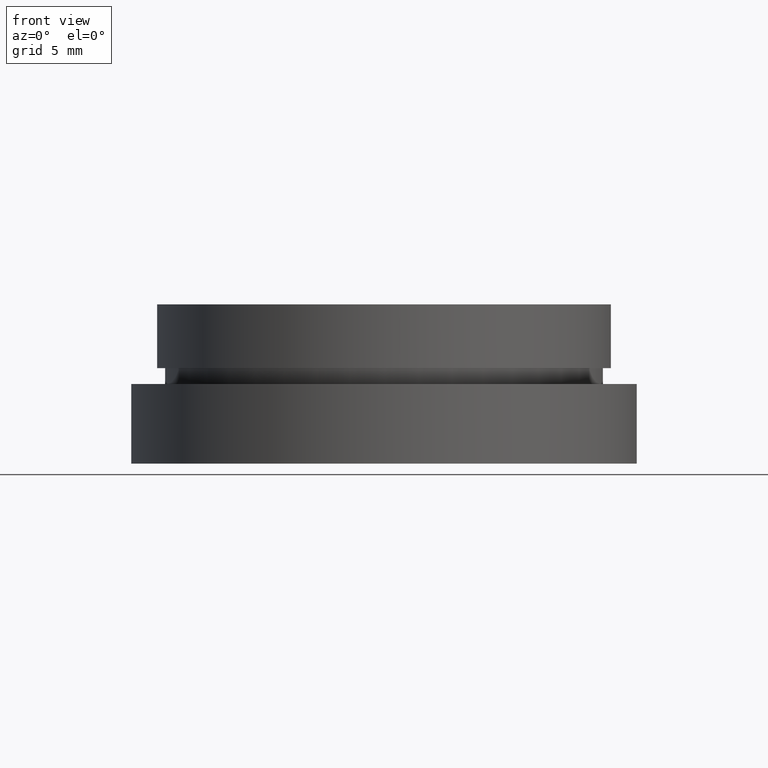
[diagram: clean part render]
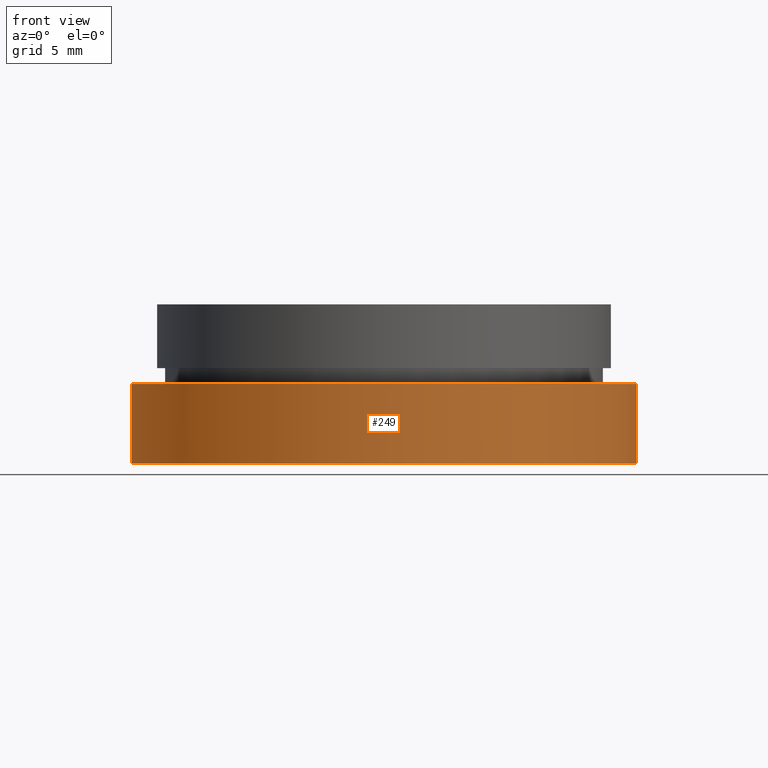
[diagram: same view with one face highlighted and labeled with its STEP entity id]
A machine part, front view. The second image highlights one B-rep face of the part: STEP entity #249.
In plain terms, the highlighted cylindrical surface (partial cylindrical patch) has radius 15.875 mm, axis along (-0, -0, -1).
Its self-contained STEP definition (entity closure, byte-faithful):
#19 = EDGE_CURVE ( 'NONE', #187, #50, #142, .T. ) ;
#20 = CIRCLE ( 'NONE', #380, 15.87500000000000000 ) ;
#29 = EDGE_CURVE ( 'NONE', #187, #75, #20, .T. ) ;
#32 = DIRECTION ( 'NONE',  ( -0.0000000000000000000, -0.0000000000000000000, -1.000000000000000000 ) ) ;
#50 = VERTEX_POINT ( 'NONE', #352 ) ;
#53 = EDGE_LOOP ( 'NONE', ( #416, #326, #82, #347 ) ) ;
#75 = VERTEX_POINT ( 'NONE', #307 ) ;
#78 = VECTOR ( 'NONE', #289, 1000.000000000000000 ) ;
#82 = ORIENTED_EDGE ( 'NONE', *, *, #238, .T. ) ;
#90 = CARTESIAN_POINT ( 'NONE',  ( 0.0000000000000000000, 0.0000000000000000000, -10.00000000000000000 ) ) ;
#92 = EDGE_CURVE ( 'NONE', #50, #286, #398, .T. ) ;
#120 = DIRECTION ( 'NONE',  ( -0.0000000000000000000, -0.0000000000000000000, -1.000000000000000000 ) ) ;
#142 = LINE ( 'NONE', #157, #78 ) ;
#143 = CARTESIAN_POINT ( 'NONE',  ( 0.0000000000000000000, 0.0000000000000000000, -19.14057971014493000 ) ) ;
#157 = CARTESIAN_POINT ( 'NONE',  ( 15.87500000000000000, 1.944126793646423200E-015, -19.14057971014493000 ) ) ;
#185 = FACE_OUTER_BOUND ( 'NONE', #53, .T. ) ;
#187 = VERTEX_POINT ( 'NONE', #258 ) ;
#213 = CARTESIAN_POINT ( 'NONE',  ( -15.87500000000000000, 0.0000000000000000000, -10.00000000000000000 ) ) ;
#226 = DIRECTION ( 'NONE',  ( -1.000000000000000000, 0.0000000000000000000, 0.0000000000000000000 ) ) ;
#238 = EDGE_CURVE ( 'NONE', #75, #286, #291, .T. ) ;
#249 = ADVANCED_FACE ( 'NONE', ( #185 ), #284, .T. ) ;
#254 = DIRECTION ( 'NONE',  ( -1.000000000000000000, 0.0000000000000000000, 0.0000000000000000000 ) ) ;
#258 = CARTESIAN_POINT ( 'NONE',  ( 15.87500000000000000, 1.944126793646423200E-015, -5.000000000000000900 ) ) ;
#284 = CYLINDRICAL_SURFACE ( 'NONE', #301, 15.87500000000000000 ) ;
#286 = VERTEX_POINT ( 'NONE', #213 ) ;
#289 = DIRECTION ( 'NONE',  ( -0.0000000000000000000, -0.0000000000000000000, -1.000000000000000000 ) ) ;
#291 = LINE ( 'NONE', #345, #337 ) ;
#301 = AXIS2_PLACEMENT_3D ( 'NONE', #143, #394, #226 ) ;
#307 = CARTESIAN_POINT ( 'NONE',  ( -15.87500000000000000, 0.0000000000000000000, -5.000000000000000900 ) ) ;
#326 = ORIENTED_EDGE ( 'NONE', *, *, #29, .T. ) ;
#335 = DIRECTION ( 'NONE',  ( -0.0000000000000000000, -0.0000000000000000000, -1.000000000000000000 ) ) ;
#337 = VECTOR ( 'NONE', #335, 1000.000000000000000 ) ;
#345 = CARTESIAN_POINT ( 'NONE',  ( -15.87500000000000000, 0.0000000000000000000, -19.14057971014493000 ) ) ;
#347 = ORIENTED_EDGE ( 'NONE', *, *, #92, .F. ) ;
#352 = CARTESIAN_POINT ( 'NONE',  ( 15.87500000000000000, 1.944126793646423200E-015, -10.00000000000000000 ) ) ;
#380 = AXIS2_PLACEMENT_3D ( 'NONE', #410, #32, #421 ) ;
#394 = DIRECTION ( 'NONE',  ( -0.0000000000000000000, -0.0000000000000000000, -1.000000000000000000 ) ) ;
#398 = CIRCLE ( 'NONE', #431, 15.87500000000000000 ) ;
#410 = CARTESIAN_POINT ( 'NONE',  ( 0.0000000000000000000, 0.0000000000000000000, -5.000000000000000900 ) ) ;
#416 = ORIENTED_EDGE ( 'NONE', *, *, #19, .F. ) ;
#421 = DIRECTION ( 'NONE',  ( -1.000000000000000000, 0.0000000000000000000, 0.0000000000000000000 ) ) ;
#431 = AXIS2_PLACEMENT_3D ( 'NONE', #90, #120, #254 ) ;